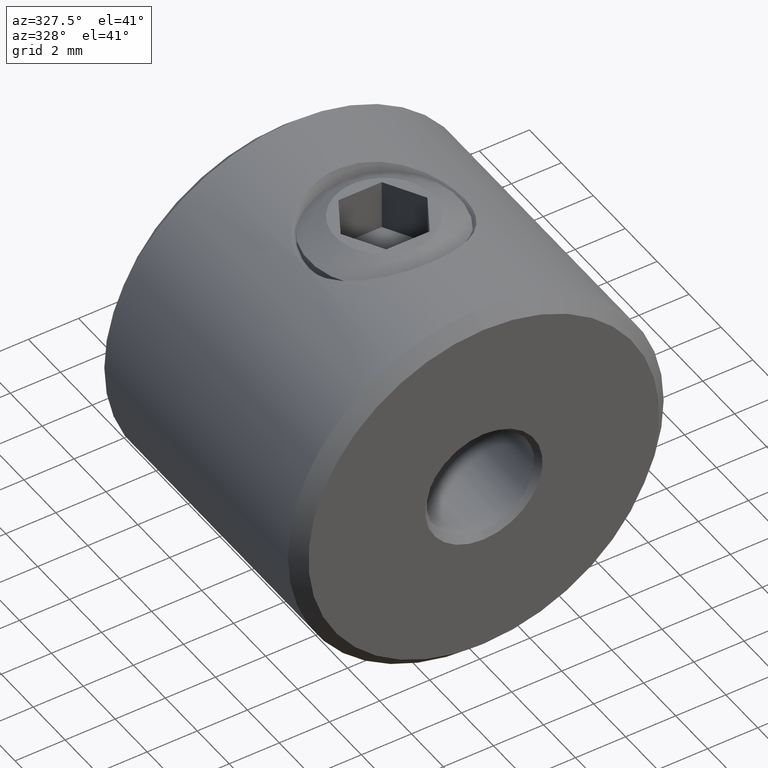
[diagram: clean part render]
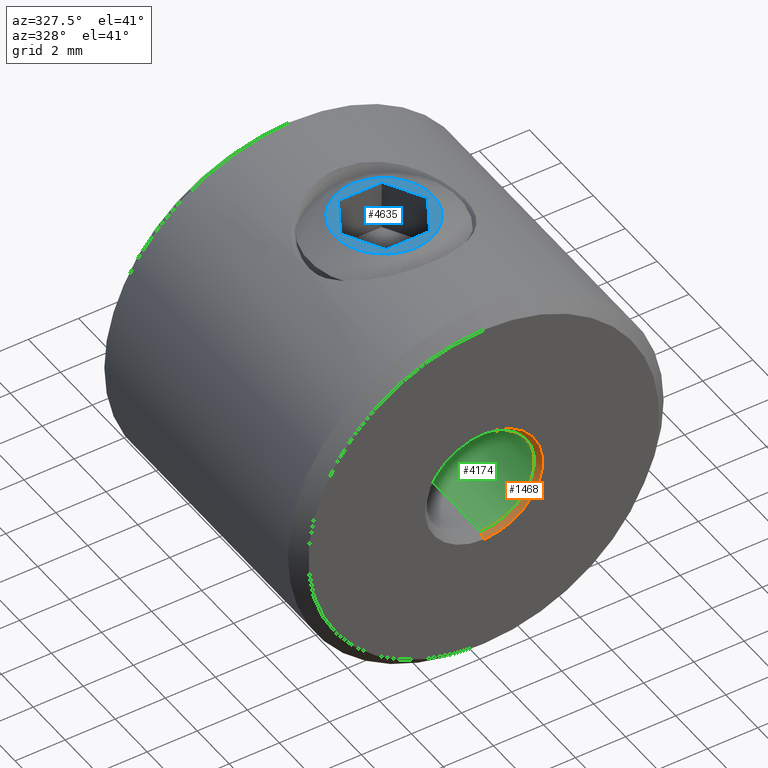
[diagram: same view with three faces highlighted in distinct colors, each labeled with its STEP entity id]
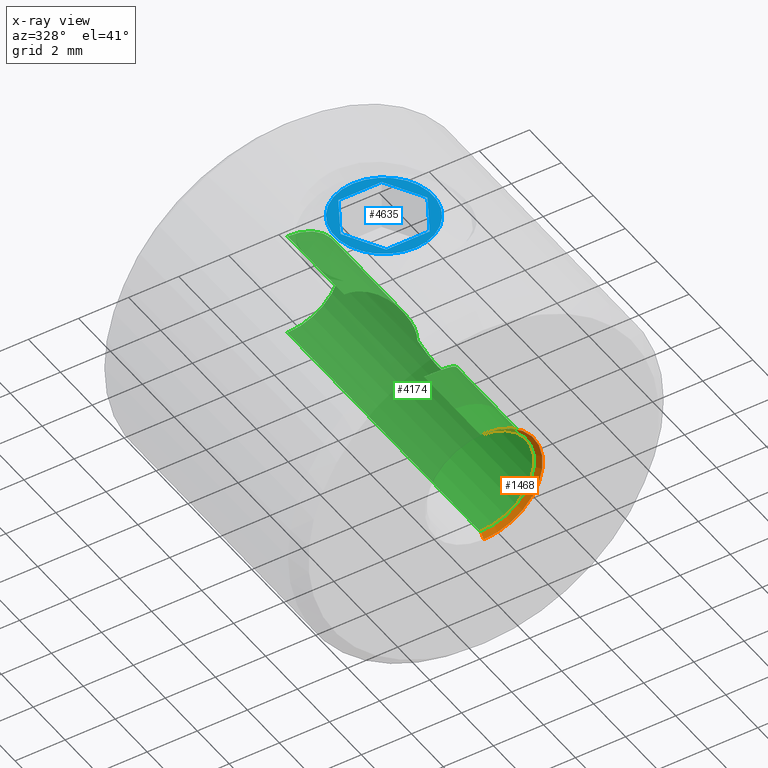
[diagram: x-ray of the same camera — body ghosted, the three highlighted faces saturated]
A machine part, auxiliary view with three faces highlighted in distinct colors.
The next image is the same camera in x-ray (body ghosted, the three faces saturated) — at least one of them is partly hidden behind the body in this view.
Their STEP definitions:

[orange] entity #1468 — the highlighted conical surface has half-angle 45 deg.
#171 = AXIS2_PLACEMENT_3D ( 'NONE', #10399, #14114, #11799 ) ;
#784 = DIRECTION ( 'NONE',  ( 0.0000000000000000000, 0.0000000000000000000, 1.000000000000000000 ) ) ;
#827 = CARTESIAN_POINT ( 'NONE',  ( 2.877919977996277900E-016, -6.250000000000000000, 2.349999999999997900 ) ) ;
#988 = CARTESIAN_POINT ( 'NONE',  ( 2.632990618166809200E-016, -6.050000000000001600, -2.149999999999999900 ) ) ;
#1459 = LINE ( 'NONE', #12646, #2390 ) ;
#1468 = ADVANCED_FACE ( 'NONE', ( #8602 ), #4029, .F. ) ;
#2244 = VERTEX_POINT ( 'NONE', #6543 ) ;
#2390 = VECTOR ( 'NONE', #12756, 1000.000000000000100 ) ;
#2831 = DIRECTION ( 'NONE',  ( 8.659560562354913100E-017, -0.7071067811865489100, 0.7071067811865460200 ) ) ;
#3147 = DIRECTION ( 'NONE',  ( -0.0000000000000000000, -1.000000000000000000, -0.0000000000000000000 ) ) ;
#3371 = VERTEX_POINT ( 'NONE', #988 ) ;
#4029 = CONICAL_SURFACE ( 'NONE', #12495, 2.349999999999997900, 0.7853981633974461700 ) ;
#4145 = CARTESIAN_POINT ( 'NONE',  ( 0.0000000000000000000, -6.250000000000000000, 0.0000000000000000000 ) ) ;
#4181 = ORIENTED_EDGE ( 'NONE', *, *, #11669, .T. ) ;
#4197 = EDGE_LOOP ( 'NONE', ( #4521, #11930, #4181, #4613 ) ) ;
#4521 = ORIENTED_EDGE ( 'NONE', *, *, #7676, .F. ) ;
#4613 = ORIENTED_EDGE ( 'NONE', *, *, #7967, .F. ) ;
#6048 = AXIS2_PLACEMENT_3D ( 'NONE', #9053, #3147, #784 ) ;
#6484 = DIRECTION ( 'NONE',  ( -0.0000000000000000000, -1.000000000000000000, -0.0000000000000000000 ) ) ;
#6535 = CARTESIAN_POINT ( 'NONE',  ( 2.877919977996277900E-016, -6.250000000000000000, 2.349999999999997900 ) ) ;
#6543 = CARTESIAN_POINT ( 'NONE',  ( 0.0000000000000000000, -6.250000000000000000, -2.349999999999997900 ) ) ;
#7100 = VECTOR ( 'NONE', #2831, 1000.000000000000100 ) ;
#7676 = EDGE_CURVE ( 'NONE', #8207, #8071, #12940, .T. ) ;
#7760 = EDGE_CURVE ( 'NONE', #3371, #8207, #14645, .T. ) ;
#7967 = EDGE_CURVE ( 'NONE', #8071, #2244, #8044, .T. ) ;
#8044 = CIRCLE ( 'NONE', #171, 2.349999999999997900 ) ;
#8071 = VERTEX_POINT ( 'NONE', #827 ) ;
#8207 = VERTEX_POINT ( 'NONE', #9727 ) ;
#8602 = FACE_OUTER_BOUND ( 'NONE', #4197, .T. ) ;
#9053 = CARTESIAN_POINT ( 'NONE',  ( 0.0000000000000000000, -6.050000000000001600, 0.0000000000000000000 ) ) ;
#9727 = CARTESIAN_POINT ( 'NONE',  ( 0.0000000000000000000, -6.050000000000001600, 2.149999999999999900 ) ) ;
#10399 = CARTESIAN_POINT ( 'NONE',  ( 0.0000000000000000000, -6.250000000000000000, 0.0000000000000000000 ) ) ;
#11669 = EDGE_CURVE ( 'NONE', #3371, #2244, #1459, .T. ) ;
#11799 = DIRECTION ( 'NONE',  ( 0.0000000000000000000, 0.0000000000000000000, 1.000000000000000000 ) ) ;
#11930 = ORIENTED_EDGE ( 'NONE', *, *, #7760, .F. ) ;
#12495 = AXIS2_PLACEMENT_3D ( 'NONE', #4145, #6484, #14941 ) ;
#12646 = CARTESIAN_POINT ( 'NONE',  ( 0.0000000000000000000, -6.250000000000000000, -2.349999999999997900 ) ) ;
#12756 = DIRECTION ( 'NONE',  ( 0.0000000000000000000, -0.7071067811865489100, -0.7071067811865460200 ) ) ;
#12940 = LINE ( 'NONE', #6535, #7100 ) ;
#14114 = DIRECTION ( 'NONE',  ( 0.0000000000000000000, 1.000000000000000000, 0.0000000000000000000 ) ) ;
#14645 = CIRCLE ( 'NONE', #6048, 2.149999999999999900 ) ;
#14941 = DIRECTION ( 'NONE',  ( 0.0000000000000000000, 0.0000000000000000000, -1.000000000000000000 ) ) ;

[blue] entity #4635 — the highlighted planar face has unit normal (0, 0, 1).
#70 = FACE_OUTER_BOUND ( 'NONE', #14170, .T. ) ;
#299 = ORIENTED_EDGE ( 'NONE', *, *, #1500, .F. ) ;
#335 = CARTESIAN_POINT ( 'NONE',  ( 8.000000000000000000, -0.8660254037844389300, 1.500000000000000200 ) ) ;
#553 = DIRECTION ( 'NONE',  ( 0.0000000000000000000, 0.0000000000000000000, -1.000000000000000000 ) ) ;
#617 = CIRCLE ( 'NONE', #15055, 1.960769515458675100 ) ;
#1288 = DIRECTION ( 'NONE',  ( 1.000000000000000000, 0.0000000000000000000, 0.0000000000000000000 ) ) ;
#1396 = DIRECTION ( 'NONE',  ( 0.0000000000000000000, 0.0000000000000000000, -1.000000000000000000 ) ) ;
#1500 = EDGE_CURVE ( 'NONE', #11365, #9125, #3653, .T. ) ;
#1861 = CARTESIAN_POINT ( 'NONE',  ( 8.000000000000000000, 0.0000000000000000000, 1.960769515458675100 ) ) ;
#1879 = DIRECTION ( 'NONE',  ( 0.0000000000000000000, -1.000000000000000000, 1.251928832280965400E-016 ) ) ;
#2247 = DIRECTION ( 'NONE',  ( 0.0000000000000000000, -0.4999999999999998300, 0.8660254037844387100 ) ) ;
#2343 = EDGE_CURVE ( 'NONE', #12826, #15657, #12155, .T. ) ;
#2496 = VECTOR ( 'NONE', #11643, 1000.000000000000100 ) ;
#2805 = DIRECTION ( 'NONE',  ( 0.0000000000000000000, 0.0000000000000000000, -1.000000000000000000 ) ) ;
#2874 = CARTESIAN_POINT ( 'NONE',  ( 8.000000000000000000, 0.8660254037844393700, 1.500000000000000000 ) ) ;
#3132 = CARTESIAN_POINT ( 'NONE',  ( 8.000000000000000000, -0.8660254037844398200, -1.499999999999999100 ) ) ;
#3243 = LINE ( 'NONE', #6839, #4028 ) ;
#3646 = CARTESIAN_POINT ( 'NONE',  ( 8.000000000000000000, 1.732050807568877600, -3.938865463562327400E-017 ) ) ;
#3653 = LINE ( 'NONE', #9407, #2496 ) ;
#4002 = CARTESIAN_POINT ( 'NONE',  ( 8.000000000000000000, 0.0000000000000000000, 0.0000000000000000000 ) ) ;
#4028 = VECTOR ( 'NONE', #5743, 1000.000000000000100 ) ;
#4055 = VERTEX_POINT ( 'NONE', #8687 ) ;
#4146 = DIRECTION ( 'NONE',  ( 0.0000000000000000000, -0.5000000000000001100, -0.8660254037844384900 ) ) ;
#4354 = EDGE_CURVE ( 'NONE', #4055, #11365, #7841, .T. ) ;
#4628 = EDGE_CURVE ( 'NONE', #6682, #8095, #9520, .T. ) ;
#4635 = ADVANCED_FACE ( 'NONE', ( #11596, #70 ), #8877, .T. ) ;
#5076 = EDGE_CURVE ( 'NONE', #15657, #5259, #9711, .T. ) ;
#5259 = VERTEX_POINT ( 'NONE', #5613 ) ;
#5613 = CARTESIAN_POINT ( 'NONE',  ( 8.000000000000000000, -1.732050807568877400, 4.336808689942017700E-016 ) ) ;
#5694 = CARTESIAN_POINT ( 'NONE',  ( 8.000000000000000000, 3.037595254207117100E-016, -1.960769515458675100 ) ) ;
#5743 = DIRECTION ( 'NONE',  ( 0.0000000000000000000, 0.4999999999999998300, -0.8660254037844387100 ) ) ;
#6085 = VECTOR ( 'NONE', #1879, 1000.000000000000000 ) ;
#6426 = EDGE_CURVE ( 'NONE', #9125, #12826, #7681, .T. ) ;
#6505 = DIRECTION ( 'NONE',  ( 1.000000000000000000, 0.0000000000000000000, 0.0000000000000000000 ) ) ;
#6682 = VERTEX_POINT ( 'NONE', #5694 ) ;
#6839 = CARTESIAN_POINT ( 'NONE',  ( 8.000000000000000000, -1.732050807568877900, 3.999578679970715900E-016 ) ) ;
#6915 = VECTOR ( 'NONE', #12625, 1000.000000000000000 ) ;
#7354 = ORIENTED_EDGE ( 'NONE', *, *, #10046, .T. ) ;
#7508 = EDGE_LOOP ( 'NONE', ( #11168, #12878, #15536, #299, #11772, #14027 ) ) ;
#7681 = LINE ( 'NONE', #3646, #10296 ) ;
#7841 = LINE ( 'NONE', #3132, #6915 ) ;
#7964 = CARTESIAN_POINT ( 'NONE',  ( 8.000000000000000000, 0.8660254037844393700, 1.500000000000000000 ) ) ;
#8095 = VERTEX_POINT ( 'NONE', #1861 ) ;
#8684 = EDGE_CURVE ( 'NONE', #5259, #4055, #3243, .T. ) ;
#8687 = CARTESIAN_POINT ( 'NONE',  ( 8.000000000000000000, -0.8660254037844398200, -1.499999999999999100 ) ) ;
#8877 = PLANE ( 'NONE',  #12925 ) ;
#8949 = VECTOR ( 'NONE', #4146, 1000.000000000000200 ) ;
#9052 = ORIENTED_EDGE ( 'NONE', *, *, #4628, .T. ) ;
#9125 = VERTEX_POINT ( 'NONE', #10134 ) ;
#9407 = CARTESIAN_POINT ( 'NONE',  ( 8.000000000000000000, 0.8660254037844393700, -1.499999999999999100 ) ) ;
#9520 = CIRCLE ( 'NONE', #11291, 1.960769515458675100 ) ;
#9711 = LINE ( 'NONE', #335, #8949 ) ;
#10046 = EDGE_CURVE ( 'NONE', #8095, #6682, #617, .T. ) ;
#10126 = DIRECTION ( 'NONE',  ( 1.000000000000000000, 0.0000000000000000000, 0.0000000000000000000 ) ) ;
#10134 = CARTESIAN_POINT ( 'NONE',  ( 8.000000000000000000, 1.732050807568877600, -3.938865463562327400E-017 ) ) ;
#10296 = VECTOR ( 'NONE', #2247, 1000.000000000000000 ) ;
#10544 = CARTESIAN_POINT ( 'NONE',  ( 8.000000000000000000, 0.8660254037844393700, -1.499999999999999100 ) ) ;
#11090 = CARTESIAN_POINT ( 'NONE',  ( 8.000000000000000000, 0.0000000000000000000, 0.0000000000000000000 ) ) ;
#11168 = ORIENTED_EDGE ( 'NONE', *, *, #5076, .F. ) ;
#11291 = AXIS2_PLACEMENT_3D ( 'NONE', #4002, #6505, #2805 ) ;
#11365 = VERTEX_POINT ( 'NONE', #10544 ) ;
#11596 = FACE_BOUND ( 'NONE', #7508, .T. ) ;
#11643 = DIRECTION ( 'NONE',  ( 0.0000000000000000000, 0.5000000000000001100, 0.8660254037844386000 ) ) ;
#11772 = ORIENTED_EDGE ( 'NONE', *, *, #4354, .F. ) ;
#12155 = LINE ( 'NONE', #7964, #6085 ) ;
#12185 = CARTESIAN_POINT ( 'NONE',  ( 8.000000000000000000, -0.8660254037844389300, 1.500000000000000200 ) ) ;
#12454 = CARTESIAN_POINT ( 'NONE',  ( 8.000000000000000000, 0.0000000000000000000, 0.0000000000000000000 ) ) ;
#12625 = DIRECTION ( 'NONE',  ( 0.0000000000000000000, 1.000000000000000000, 0.0000000000000000000 ) ) ;
#12826 = VERTEX_POINT ( 'NONE', #2874 ) ;
#12878 = ORIENTED_EDGE ( 'NONE', *, *, #2343, .F. ) ;
#12925 = AXIS2_PLACEMENT_3D ( 'NONE', #12454, #10126, #553 ) ;
#14027 = ORIENTED_EDGE ( 'NONE', *, *, #8684, .F. ) ;
#14170 = EDGE_LOOP ( 'NONE', ( #7354, #9052 ) ) ;
#15055 = AXIS2_PLACEMENT_3D ( 'NONE', #11090, #1288, #1396 ) ;
#15536 = ORIENTED_EDGE ( 'NONE', *, *, #6426, .F. ) ;
#15657 = VERTEX_POINT ( 'NONE', #12185 ) ;

[green] entity #4174 — the highlighted cylindrical surface (partial cylindrical patch) has radius 2.15 mm, axis along (0, 1, 0).
#217 = DIRECTION ( 'NONE',  ( -0.0000000000000000000, 1.000000000000000000, -0.0000000000000000000 ) ) ;
#655 = CARTESIAN_POINT ( 'NONE',  ( 2.149999999999999900, 1.275735082217303000, -5.384364950697873400E-017 ) ) ;
#784 = DIRECTION ( 'NONE',  ( 0.0000000000000000000, 0.0000000000000000000, 1.000000000000000000 ) ) ;
#988 = CARTESIAN_POINT ( 'NONE',  ( 2.632990618166809200E-016, -6.050000000000001600, -2.149999999999999900 ) ) ;
#1146 = CARTESIAN_POINT ( 'NONE',  ( 2.133261416621418800, -1.304703684789853000, 0.3041509722993741000 ) ) ;
#1337 = B_SPLINE_CURVE_WITH_KNOTS ( 'NONE', 3,
 ( #5315, #13783, #11204, #2763 ),
 .UNSPECIFIED., .F., .F.,
 ( 4, 4 ),
 ( 0.0004669633346892131700, 0.001760409633815485400 ),
 .UNSPECIFIED. ) ;
#1596 = CARTESIAN_POINT ( 'NONE',  ( 2.632990618166809200E-016, -6.250000000000000000, -2.149999999999999900 ) ) ;
#1622 = EDGE_CURVE ( 'NONE', #5268, #10021, #9738, .T. ) ;
#1768 = EDGE_CURVE ( 'NONE', #7809, #9595, #3191, .T. ) ;
#2002 = LINE ( 'NONE', #7970, #8101 ) ;
#2070 = CARTESIAN_POINT ( 'NONE',  ( 0.5954120746587007200, 2.432590210314740100, 2.071293574965057600 ) ) ;
#2618 = DIRECTION ( 'NONE',  ( 0.0000000000000000000, 0.0000000000000000000, 1.000000000000000000 ) ) ;
#2763 = CARTESIAN_POINT ( 'NONE',  ( 2.139032049614168600, -4.219478212382016800E-015, -0.2168914261179394900 ) ) ;
#2847 = ORIENTED_EDGE ( 'NONE', *, *, #1622, .T. ) ;
#2918 = CARTESIAN_POINT ( 'NONE',  ( 2.139032049614168600, -4.219478212382016800E-015, -0.2168914261179394900 ) ) ;
#3071 = AXIS2_PLACEMENT_3D ( 'NONE', #15639, #14466, #7197 ) ;
#3147 = DIRECTION ( 'NONE',  ( -0.0000000000000000000, -1.000000000000000000, -0.0000000000000000000 ) ) ;
#3181 = CARTESIAN_POINT ( 'NONE',  ( 0.0000000000000000000, 6.050000000000001600, 2.149999999999999900 ) ) ;
#3185 = ORIENTED_EDGE ( 'NONE', *, *, #1768, .T. ) ;
#3191 = B_SPLINE_CURVE_WITH_KNOTS ( 'NONE', 3,
 ( #2918, #7682, #6391, #4059, #6447, #11411 ),
 .UNSPECIFIED., .F., .F.,
 ( 4, 2, 4 ),
 ( 0.001760409633815485400, 0.002402356919602020900, 0.003044304205388556300 ),
 .UNSPECIFIED. ) ;
#3298 = CARTESIAN_POINT ( 'NONE',  ( 2.149999999999999900, 1.275735082217304100, 0.1537928784693633500 ) ) ;
#3345 = CARTESIAN_POINT ( 'NONE',  ( 1.861254997223449100, 1.672288516034286400, 1.084149552491637600 ) ) ;
#3371 = VERTEX_POINT ( 'NONE', #988 ) ;
#3400 = CARTESIAN_POINT ( 'NONE',  ( 1.345136824093967000, 2.111213935302912200, 1.682808623091130800 ) ) ;
#3434 = VECTOR ( 'NONE', #6657, 1000.000000000000000 ) ;
#3800 = CARTESIAN_POINT ( 'NONE',  ( 2.632990618166809200E-016, 6.050000000000001600, -2.149999999999999900 ) ) ;
#4059 = CARTESIAN_POINT ( 'NONE',  ( 2.147128202997185700, 0.8604793201585008200, -0.1176058701802428100 ) ) ;
#4140 = VERTEX_POINT ( 'NONE', #3800 ) ;
#4174 = ADVANCED_FACE ( 'NONE', ( #9725 ), #15207, .F. ) ;
#4520 = CARTESIAN_POINT ( 'NONE',  ( 1.120857853187716000, 2.238368832229897400, 1.839814015174059200 ) ) ;
#4592 = ORIENTED_EDGE ( 'NONE', *, *, #7499, .T. ) ;
#4695 = CARTESIAN_POINT ( 'NONE',  ( 0.3032929259899027600, -2.485946836238646100, 2.133703790690577100 ) ) ;
#4749 = CARTESIAN_POINT ( 'NONE',  ( 2.073504347843119000, -1.397725186231372000, 0.5864228892803885500 ) ) ;
#5268 = VERTEX_POINT ( 'NONE', #15350 ) ;
#5315 = CARTESIAN_POINT ( 'NONE',  ( 2.149999999999999900, -1.275735082217303000, 0.0000000000000000000 ) ) ;
#5389 = CARTESIAN_POINT ( 'NONE',  ( 2.139032049614168600, -4.219478212382016800E-015, -0.2168914261179394900 ) ) ;
#5845 = CARTESIAN_POINT ( 'NONE',  ( 0.1506947970163634900, 2.499999999999998200, 2.149999999999999900 ) ) ;
#6022 = EDGE_LOOP ( 'NONE', ( #13024, #14439, #12913, #2847, #10196, #3185, #7226, #15250, #4592 ) ) ;
#6048 = AXIS2_PLACEMENT_3D ( 'NONE', #9053, #3147, #784 ) ;
#6079 = CARTESIAN_POINT ( 'NONE',  ( 2.149999999999999900, -1.275735082217303300, 0.1534745132368854900 ) ) ;
#6391 = CARTESIAN_POINT ( 'NONE',  ( 2.141521337821970400, 0.4361268636799845400, -0.1946201954062830600 ) ) ;
#6444 = AXIS2_PLACEMENT_3D ( 'NONE', #12278, #217, #2618 ) ;
#6447 = CARTESIAN_POINT ( 'NONE',  ( 2.150000000000000400, 1.069122495723574800, -0.06335063979649369100 ) ) ;
#6657 = DIRECTION ( 'NONE',  ( -0.0000000000000000000, 1.000000000000000000, -0.0000000000000000000 ) ) ;
#6949 = CARTESIAN_POINT ( 'NONE',  ( 1.715908765832581800, 1.821119477927883200, 1.302039755228690400 ) ) ;
#6981 = CARTESIAN_POINT ( 'NONE',  ( 2.149999999999999900, 1.275735082217303000, -5.384364950697873400E-017 ) ) ;
#7107 = CARTESIAN_POINT ( 'NONE',  ( 1.448830986109930900, 2.040761380605209400, 1.594055276262391000 ) ) ;
#7166 = CARTESIAN_POINT ( 'NONE',  ( 1.356577628608072400, -2.112901725161469900, 1.688750181768103400 ) ) ;
#7197 = DIRECTION ( 'NONE',  ( 0.0000000000000000000, 0.0000000000000000000, 1.000000000000000000 ) ) ;
#7221 = CARTESIAN_POINT ( 'NONE',  ( -1.534683074066103200E-019, -2.499999999999998200, 2.149999999999999900 ) ) ;
#7226 = ORIENTED_EDGE ( 'NONE', *, *, #13731, .T. ) ;
#7283 = CARTESIAN_POINT ( 'NONE',  ( 0.1504203191165433600, -2.499999999999998700, 2.149999999999999900 ) ) ;
#7292 = LINE ( 'NONE', #1596, #12921 ) ;
#7342 = CARTESIAN_POINT ( 'NONE',  ( 2.149999999999999900, -1.275735082217303000, 0.0000000000000000000 ) ) ;
#7499 = EDGE_CURVE ( 'NONE', #8645, #4140, #15398, .T. ) ;
#7682 = CARTESIAN_POINT ( 'NONE',  ( 2.139032049614153500, 0.2183092846975670200, -0.2168914261179493200 ) ) ;
#7760 = EDGE_CURVE ( 'NONE', #3371, #8207, #14645, .T. ) ;
#7809 = VERTEX_POINT ( 'NONE', #5389 ) ;
#7962 = CARTESIAN_POINT ( 'NONE',  ( 1.534683074066103200E-019, 2.499999999999998200, 2.149999999999999900 ) ) ;
#7970 = CARTESIAN_POINT ( 'NONE',  ( 0.0000000000000000000, -6.250000000000000000, 2.149999999999999900 ) ) ;
#8101 = VECTOR ( 'NONE', #12649, 1000.000000000000000 ) ;
#8202 = CARTESIAN_POINT ( 'NONE',  ( 1.534683074066103200E-019, 2.499999999999998200, 2.149999999999999900 ) ) ;
#8207 = VERTEX_POINT ( 'NONE', #9727 ) ;
#8314 = CARTESIAN_POINT ( 'NONE',  ( 1.724806660935309900, -1.824746159065254100, 1.310428182410196000 ) ) ;
#8420 = EDGE_CURVE ( 'NONE', #3371, #4140, #7292, .T. ) ;
#8574 = CARTESIAN_POINT ( 'NONE',  ( 2.149999999999999900, -1.275735082217303000, 0.0000000000000000000 ) ) ;
#8645 = VERTEX_POINT ( 'NONE', #3181 ) ;
#9053 = CARTESIAN_POINT ( 'NONE',  ( 0.0000000000000000000, -6.050000000000001600, 0.0000000000000000000 ) ) ;
#9238 = CARTESIAN_POINT ( 'NONE',  ( 0.7342969976687251400, 2.393906171175435000, 2.025906389515229400 ) ) ;
#9345 = CARTESIAN_POINT ( 'NONE',  ( 0.9994511090636991600, 2.295882470373532300, 1.909079951299912600 ) ) ;
#9397 = CARTESIAN_POINT ( 'NONE',  ( 2.031087096408395800, 1.460204067508870100, 0.7179690717354577600 ) ) ;
#9595 = VERTEX_POINT ( 'NONE', #6981 ) ;
#9674 = CARTESIAN_POINT ( 'NONE',  ( 1.872107930195030100, -1.665824704313992400, 1.090905193608320100 ) ) ;
#9725 = FACE_OUTER_BOUND ( 'NONE', #6022, .T. ) ;
#9727 = CARTESIAN_POINT ( 'NONE',  ( 0.0000000000000000000, -6.050000000000001600, 2.149999999999999900 ) ) ;
#9738 = B_SPLINE_CURVE_WITH_KNOTS ( 'NONE', 3,
 ( #7221, #7283, #4695, #15663, #13111, #13160, #7166, #8314, #9674, #13325, #4749, #1146, #6079, #7342 ),
 .UNSPECIFIED., .F., .F.,
 ( 4, 2, 2, 2, 2, 2, 4 ),
 ( 0.003626857427847185500, 0.004079388854353354300, 0.004531920280859523200, 0.005436983133871860900, 0.006342045986884198600, 0.006794577413390367500, 0.007247108839896536400 ),
 .UNSPECIFIED. ) ;
#10021 = VERTEX_POINT ( 'NONE', #8574 ) ;
#10196 = ORIENTED_EDGE ( 'NONE', *, *, #13548, .T. ) ;
#10503 = CARTESIAN_POINT ( 'NONE',  ( 0.3035271358532747900, 2.485936835032056500, 2.133692548175959700 ) ) ;
#11141 = CARTESIAN_POINT ( 'NONE',  ( 0.0000000000000000000, -6.250000000000000000, 2.149999999999999900 ) ) ;
#11204 = CARTESIAN_POINT ( 'NONE',  ( 2.139032049614153100, -0.4398668591783404500, -0.2168914261179480400 ) ) ;
#11277 = DIRECTION ( 'NONE',  ( -0.0000000000000000000, 1.000000000000000000, -0.0000000000000000000 ) ) ;
#11411 = CARTESIAN_POINT ( 'NONE',  ( 2.149999999999999900, 1.275735082217303000, -5.384364950697873400E-017 ) ) ;
#11791 = CARTESIAN_POINT ( 'NONE',  ( 2.073432384459297200, 1.397848318693016200, 0.5869928898129031000 ) ) ;
#11848 = CARTESIAN_POINT ( 'NONE',  ( 1.633930095200459600, 1.895808714738955300, 1.403707909107325500 ) ) ;
#12278 = CARTESIAN_POINT ( 'NONE',  ( 0.0000000000000000000, -6.250000000000000000, 0.0000000000000000000 ) ) ;
#12364 = EDGE_CURVE ( 'NONE', #12542, #8645, #2002, .T. ) ;
#12542 = VERTEX_POINT ( 'NONE', #7962 ) ;
#12649 = DIRECTION ( 'NONE',  ( -0.0000000000000000000, 1.000000000000000000, -0.0000000000000000000 ) ) ;
#12913 = ORIENTED_EDGE ( 'NONE', *, *, #14928, .T. ) ;
#12921 = VECTOR ( 'NONE', #11277, 1000.000000000000000 ) ;
#13024 = ORIENTED_EDGE ( 'NONE', *, *, #8420, .F. ) ;
#13111 = CARTESIAN_POINT ( 'NONE',  ( 0.7348609064993940600, -2.393686039498629900, 2.025643330185193500 ) ) ;
#13160 = CARTESIAN_POINT ( 'NONE',  ( 1.130353194561114500, -2.247513133645970800, 1.851433895023591100 ) ) ;
#13325 = CARTESIAN_POINT ( 'NONE',  ( 2.030406667663600100, -1.461125859006563200, 0.7197494875596474100 ) ) ;
#13548 = EDGE_CURVE ( 'NONE', #10021, #7809, #1337, .T. ) ;
#13731 = EDGE_CURVE ( 'NONE', #9595, #12542, #14243, .T. ) ;
#13783 = CARTESIAN_POINT ( 'NONE',  ( 2.149999999999999900, -0.8615338446984471800, -0.1270005561936833100 ) ) ;
#14243 = B_SPLINE_CURVE_WITH_KNOTS ( 'NONE', 3,
 ( #655, #3298, #15435, #11791, #9397, #14265, #3345, #6949, #11848, #7107, #3400, #4520, #9345, #9238, #2070, #10503, #5845, #8202 ),
 .UNSPECIFIED., .F., .F.,
 ( 4, 2, 2, 2, 2, 2, 2, 2, 4 ),
 ( 1.867655613491879800E-019, 0.0004533571784808980200, 0.0009067143569617959300, 0.001360071535442694100, 0.001813428713923592500, 0.002266785892404490500, 0.002720143070885388700, 0.003173500249366287300, 0.003626857427847185500 ),
 .UNSPECIFIED. ) ;
#14265 = CARTESIAN_POINT ( 'NONE',  ( 1.925094772295568500, 1.597348061521473900, 0.9668528837654856200 ) ) ;
#14439 = ORIENTED_EDGE ( 'NONE', *, *, #7760, .T. ) ;
#14466 = DIRECTION ( 'NONE',  ( 0.0000000000000000000, 1.000000000000000000, 0.0000000000000000000 ) ) ;
#14629 = LINE ( 'NONE', #11141, #3434 ) ;
#14645 = CIRCLE ( 'NONE', #6048, 2.149999999999999900 ) ;
#14928 = EDGE_CURVE ( 'NONE', #8207, #5268, #14629, .T. ) ;
#15207 = CYLINDRICAL_SURFACE ( 'NONE', #6444, 2.149999999999999900 ) ;
#15250 = ORIENTED_EDGE ( 'NONE', *, *, #12364, .T. ) ;
#15350 = CARTESIAN_POINT ( 'NONE',  ( -1.534683074066103200E-019, -2.499999999999998200, 2.149999999999999900 ) ) ;
#15398 = CIRCLE ( 'NONE', #3071, 2.149999999999999900 ) ;
#15435 = CARTESIAN_POINT ( 'NONE',  ( 2.133625432114932200, 1.304125872157222200, 0.3022002995495621800 ) ) ;
#15639 = CARTESIAN_POINT ( 'NONE',  ( 0.0000000000000000000, 6.050000000000001600, 0.0000000000000000000 ) ) ;
#15663 = CARTESIAN_POINT ( 'NONE',  ( 0.5945761450907488500, -2.432775673844482800, 2.071510963777859300 ) ) ;